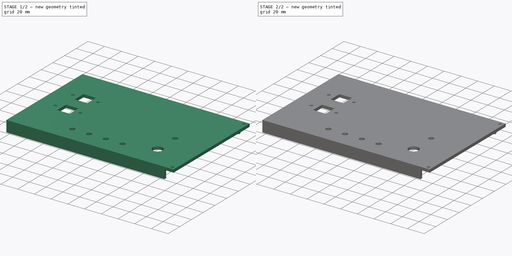
[diagram: build sequence overview — one tinted view per stage of 2, left to right]
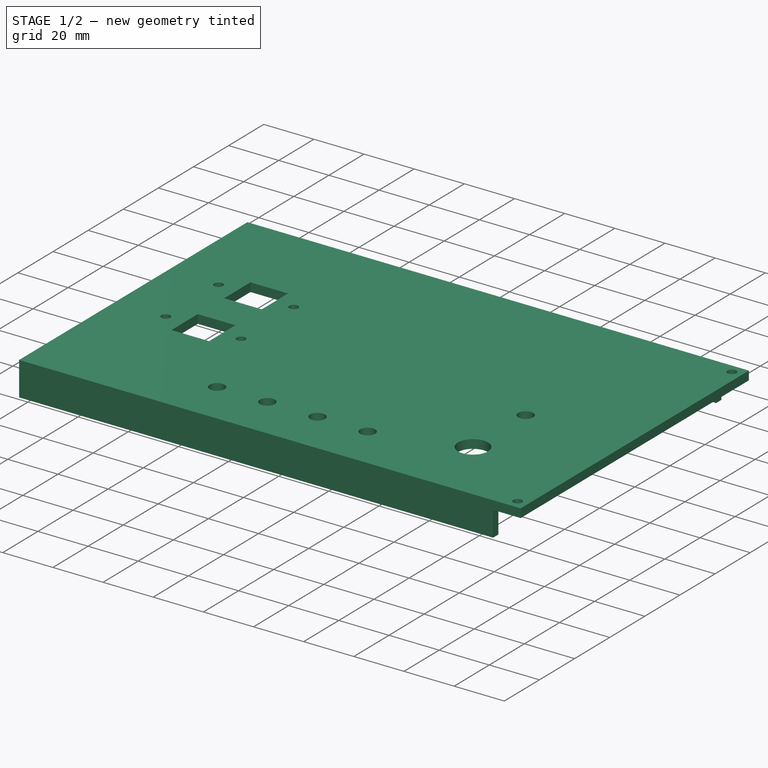
[diagram: stage 1 of 2 — iso view after this stage's code; geometry added in this stage tinted green]
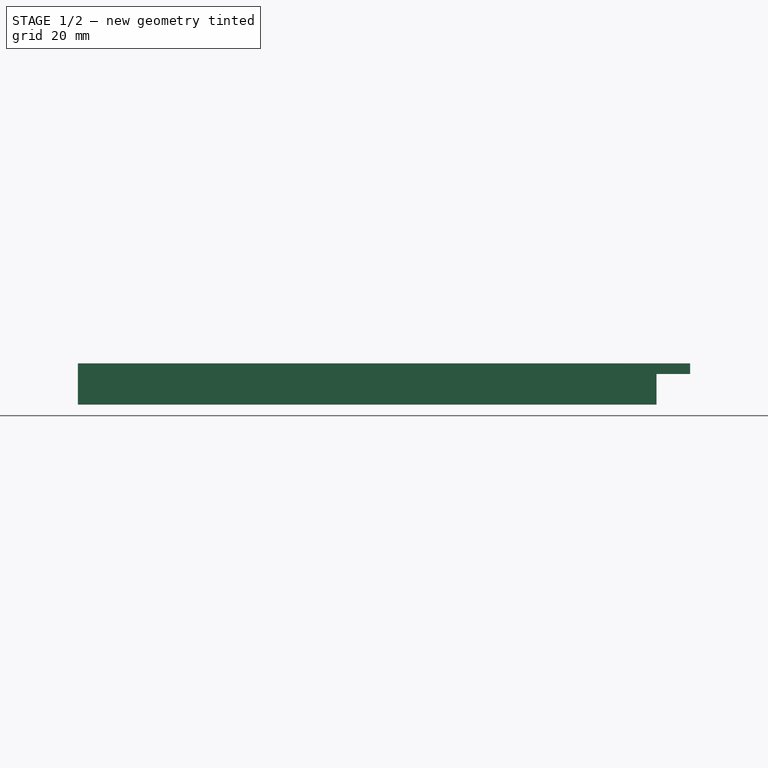
[diagram: stage 1 of 2 — front view after this stage's code; geometry added in this stage tinted green]
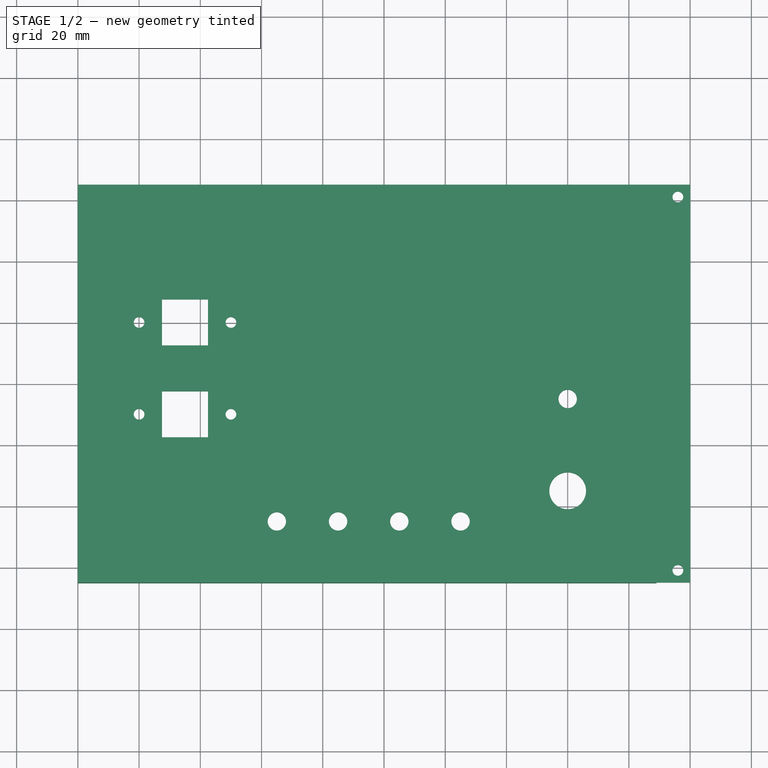
[diagram: stage 1 of 2 — top view after this stage's code; geometry added in this stage tinted green]
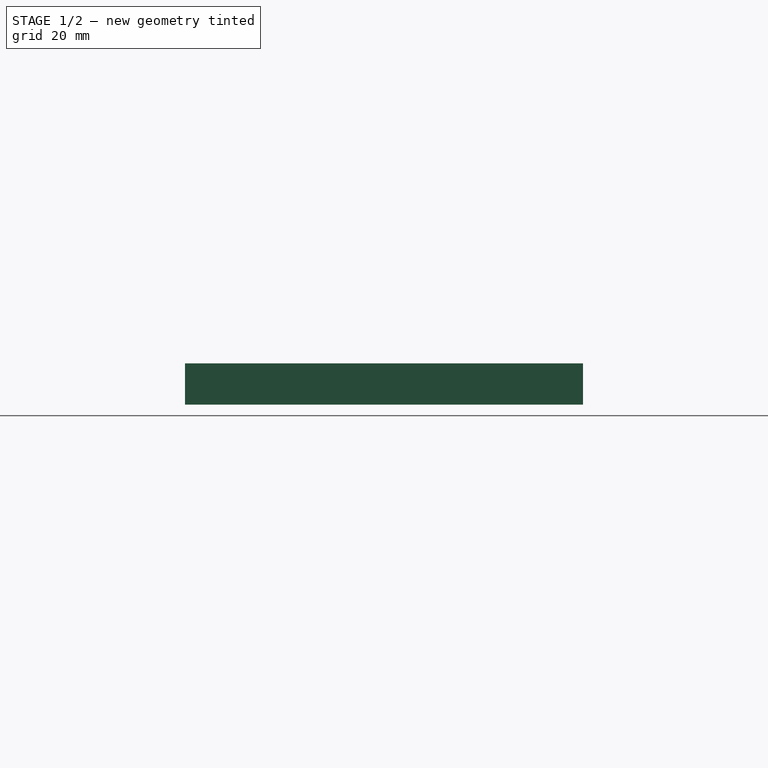
[diagram: stage 1 of 2 — right view after this stage's code; geometry added in this stage tinted green]
FCSTD DOCUMENT  (FreeCAD 0.19R24267 +99 (Git))
Label: T41 7in bACK left panel V007
License: All rights reserved
LicenseURL: http://en.wikipedia.org/wiki/All_rights_reserved
objects: Sketcher::SketchObject×4, PartDesign::Pad×2, PartDesign::Pocket×2, PartDesign::Body×1
note: 13 computed .brp shape members not serialized (recipe doc carries the construction recipe); baked Part::Feature solids carry a one-line shape summary decoded from their .brp

FEATURE [Sketcher::SketchObject] CopySketch010
  FullyConstrained = true
  MapMode = 5
  Placement = pos=(0,0,0) rot=(0,1,0;3.14159rad)
  Support = -> [XY_Plane]
  sketch-geometry (24):
    g0: LineSegment StartX=-200 StartY=65 StartZ=0 EndX=0 EndY=65 EndZ=0
    g1: LineSegment StartX=0 StartY=65 StartZ=0 EndX=0 EndY=-65 EndZ=0
    g2: LineSegment StartX=0 StartY=-65 StartZ=0 EndX=-200 EndY=-65 EndZ=0
    g3: LineSegment StartX=-200 StartY=-65 StartZ=0 EndX=-200 EndY=65 EndZ=0
    g4: Circle CenterX=-196 CenterY=61 CenterZ=0 NormalX=0 NormalY=0 NormalZ=1 AngleXU=0 Radius=1.75
    g5: Circle CenterX=-196 CenterY=-61 CenterZ=0 NormalX=0 NormalY=0 NormalZ=1 AngleXU=0 Radius=1.75
    g6: Circle CenterX=-125 CenterY=-45 CenterZ=0 NormalX=0 NormalY=0 NormalZ=1 AngleXU=0 Radius=3
    g7: Circle CenterX=-105 CenterY=-45 CenterZ=0 NormalX=0 NormalY=0 NormalZ=1 AngleXU=0 Radius=3
    g8: Circle CenterX=-85 CenterY=-45 CenterZ=0 NormalX=0 NormalY=0 NormalZ=1 AngleXU=0 Radius=3
    g9: Circle CenterX=-65 CenterY=-45 CenterZ=0 NormalX=0 NormalY=0 NormalZ=1 AngleXU=0 Radius=3
    g10: Circle CenterX=-50 CenterY=-10 CenterZ=0 NormalX=0 NormalY=0 NormalZ=1 AngleXU=0 Radius=1.75
    g11: Circle CenterX=-20 CenterY=-10 CenterZ=0 NormalX=0 NormalY=0 NormalZ=1 AngleXU=0 Radius=1.75
    g12: LineSegment StartX=-42.5 StartY=-2.5 StartZ=0 EndX=-27.5 EndY=-2.5 EndZ=0
    g13: LineSegment StartX=-27.5 StartY=-2.5 StartZ=0 EndX=-27.5 EndY=-17.5 EndZ=0
    g14: LineSegment StartX=-27.5 StartY=-17.5 StartZ=0 EndX=-42.5 EndY=-17.5 EndZ=0
    g15: LineSegment StartX=-42.5 StartY=-17.5 StartZ=0 EndX=-42.5 EndY=-2.5 EndZ=0
    g16: Circle CenterX=-50 CenterY=20 CenterZ=0 NormalX=0 NormalY=0 NormalZ=1 AngleXU=0 Radius=1.75
    g17: Circle CenterX=-20 CenterY=20 CenterZ=0 NormalX=0 NormalY=0 NormalZ=1 AngleXU=0 Radius=1.75
    g18: LineSegment StartX=-42.5 StartY=27.5 StartZ=0 EndX=-27.5 EndY=27.5 EndZ=0
    g19: LineSegment StartX=-27.5 StartY=27.5 StartZ=0 EndX=-27.5 EndY=12.5 EndZ=0
    g20: LineSegment StartX=-27.5 StartY=12.5 StartZ=0 EndX=-42.5 EndY=12.5 EndZ=0
    g21: LineSegment StartX=-42.5 StartY=12.5 StartZ=0 EndX=-42.5 EndY=27.5 EndZ=0
    g22: Circle CenterX=-160 CenterY=-35 CenterZ=0 NormalX=0 NormalY=0 NormalZ=1 AngleXU=0 Radius=6
    g23: Circle CenterX=-160 CenterY=-5 CenterZ=0 NormalX=0 NormalY=0 NormalZ=1 AngleXU=0 Radius=3
  constraints (72):
    c: Coincident(g0,g1)
    c: Coincident(g1,g2)
    c: Coincident(g2,g3)
    c: Coincident(g3,g0)
    c: Horizontal(g0)
    c: Horizontal(g2)
    c: Vertical(g1)
    c: Vertical(g3)
    c: PointOnObject(g1,g-2)
    c: DistanceY(g1,g1) = 130
    c: DistanceX(g2,g2) = 200
    c: Equal(g4,g5)
    c: Diameter(g4) = 3.5
    c: DistanceY(g5,g-1) = 61
    c: DistanceX(g5,g-1) = 196
    c: DistanceX(g4,g-1) = 196
    c: DistanceY(g-1,g4) = 61
    c: DistanceY(g-1,g0) = 65
    c: Equal(g6,g7)
    c: Equal(g6,g8)
    c: Equal(g6,g9)
    c: Diameter(g6) = 6
    c: Horizontal(g6,g7)
    c: Horizontal(g7,g8)
    c: Horizontal(g8,g9)
    c: DistanceX(g6,g7) = 20
    c: DistanceX(g7,g8) = 20
    c: DistanceX(g8,g9) = 20
    c: Equal(g10,g11)
    c: Diameter(g10) = 3.5
    c: DistanceX(g10,g11) = 30
    c: Horizontal(g10,g11)
    c: Coincident(g12,g13)
    c: Coincident(g13,g14)
    c: Coincident(g14,g15)
    c: Coincident(g15,g12)
    c: Horizontal(g12)
    c: Horizontal(g14)
    c: Vertical(g13)
    c: Vertical(g15)
    c: DistanceX(g12,g12) = 15
    c: DistanceY(g13,g13) = 15
    c: DistanceX(g12,g11) = 7.5
    c: Equal(g16,g17)
    c: Diameter(g16) = 3.5
    c: DistanceX(g16,g17) = 30
    c: Horizontal(g16,g17)
    c: Coincident(g18,g19)
    c: Coincident(g19,g20)
    c: Coincident(g20,g21)
    c: Coincident(g21,g18)
    c: Horizontal(g18)
    c: Horizontal(g20)
    c: Vertical(g19)
    c: Vertical(g21)
    c: DistanceX(g18,g18) = 15
    c: DistanceY(g19,g19) = 15
    c: DistanceX(g18,g17) = 7.5
    c: DistanceY(g11,g12) = 7.5
    c: DistanceY(g17,g18) = 7.5
    c: DistanceY(g11,g-1) = 10
    c: DistanceY(g-1,g17) = 20
    c: Diameter(g22) = 12
    c: DistanceX(g22,g-1) = 160
    c: DistanceY(g22,g-1) = 35
    c: DistanceY(g6,g-1) = 45
    c: DistanceX(g22,g6) = 35
    c: DistanceX(g17,g-1) = 20
    c: Vertical(g17,g11)
    c: Diameter(g23) = 6
    c: DistanceY(g22,g23) = 30
    c: Vertical(g23,g22)
FEATURE [PartDesign::Pad] Pad
  Direction = (1,1,1)
  Length = 3.5
  Length2 = 100
  Profile = -> CopySketch010
  Type = 0
FEATURE [Sketcher::SketchObject] Sketch
  FullyConstrained = true
  MapMode = 5
  Support = -> [XY_Plane]
  sketch-geometry (8):
    g0: LineSegment StartX=0 StartY=65 StartZ=0 EndX=189 EndY=65 EndZ=0
    g1: LineSegment StartX=189 StartY=65 StartZ=0 EndX=189 EndY=62 EndZ=0
    g2: LineSegment StartX=3 StartY=62 StartZ=0 EndX=3 EndY=-62 EndZ=0
    g3: LineSegment StartX=0 StartY=-65 StartZ=0 EndX=0 EndY=65 EndZ=0
    g4: LineSegment StartX=3 StartY=62 StartZ=0 EndX=189 EndY=62 EndZ=0
    g5: LineSegment StartX=3 StartY=-62 StartZ=0 EndX=189 EndY=-62 EndZ=0
    g6: LineSegment StartX=0 StartY=-65 StartZ=0 EndX=189 EndY=-65 EndZ=0
    g7: LineSegment StartX=189 StartY=-62 StartZ=0 EndX=189 EndY=-65 EndZ=0
  constraints (24):
    c: Coincident(g0,g1)
    c: Horizontal(g0)
    c: Vertical(g1)
    c: PointOnObject(g0,g-2)
    c: Vertical(g2)
    c: Vertical(g3)
    c: DistanceY(g-1,g0) = 65
    c: DistanceX(g0,g0) = 189
    c: DistanceY(g3,g-1) = 65
    c: DistanceY(g2,g-1) = 62
    c: DistanceY(g2,g2) = 124
    c: Coincident(g4,g1)
    c: Horizontal(g4)
    c: Coincident(g5,g2)
    c: Horizontal(g5)
    c: Coincident(g6,g3)
    c: Horizontal(g6)
    c: Coincident(g7,g5)
    c: Coincident(g7,g6)
    c: DistanceX(g6,g6) = 189
    c: DistanceX(g5,g5) = 186
    c: DistanceX(g-1,g2) = 3
    c: Coincident(g0,g3)
    c: Coincident(g4,g2)
FEATURE [PartDesign::Pad] Pad001  label="Flange"
  BaseFeature = -> Pad
  Direction = (1,1,1)
  Length = 13.5
  Length2 = 100
  Profile = -> Sketch
  Reversed = true
  Type = 0
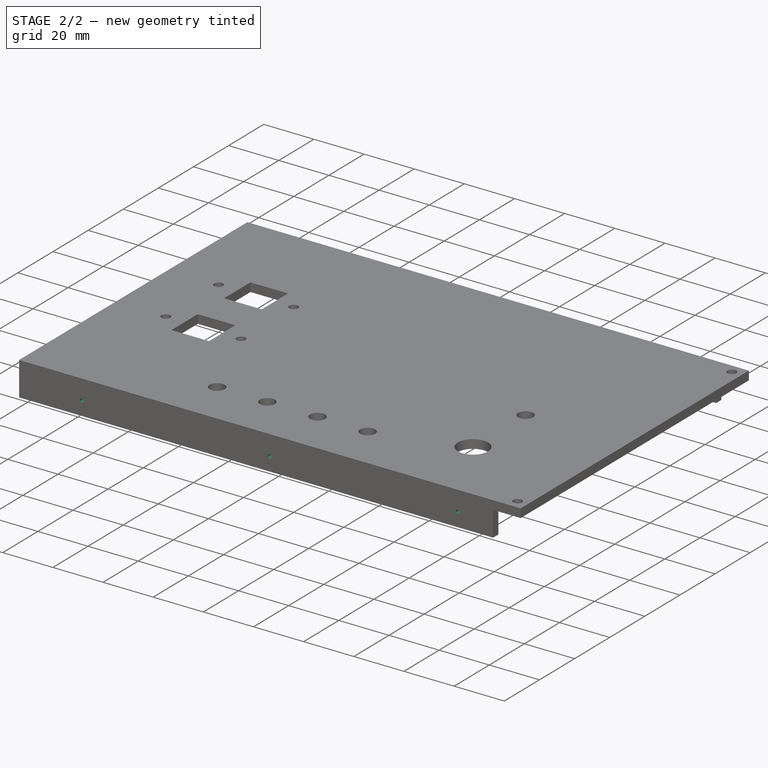
[diagram: stage 2 of 2 — iso view after this stage's code; geometry added in this stage tinted green]
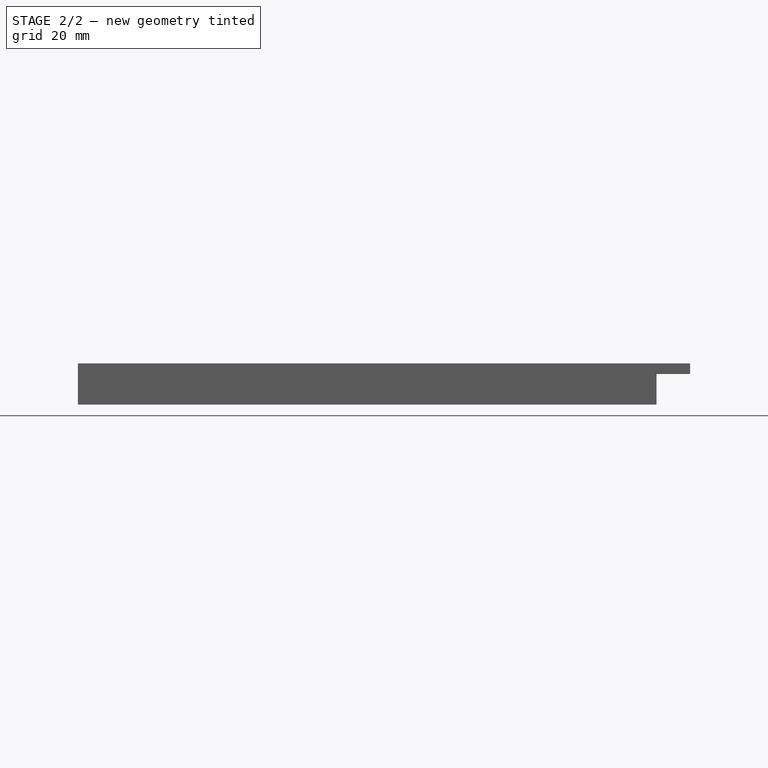
[diagram: stage 2 of 2 — front view after this stage's code; geometry added in this stage tinted green]
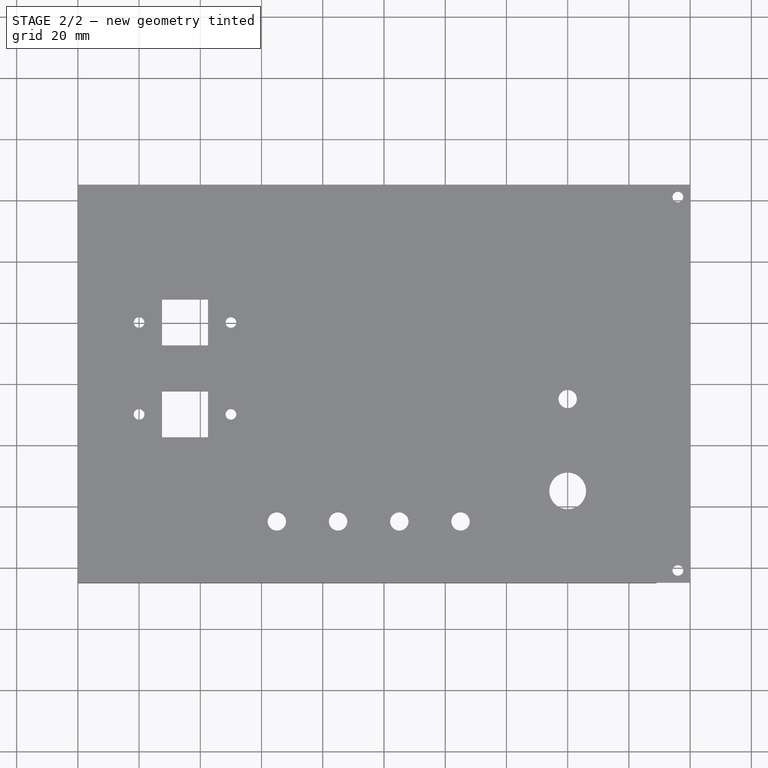
[diagram: stage 2 of 2 — top view after this stage's code; geometry added in this stage tinted green]
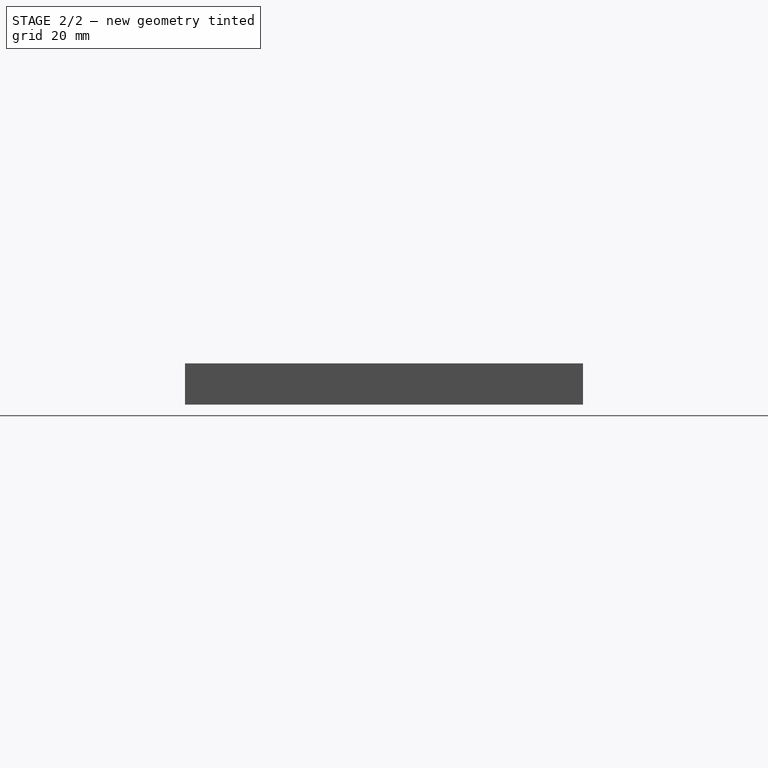
[diagram: stage 2 of 2 — right view after this stage's code; geometry added in this stage tinted green]
FEATURE [Sketcher::SketchObject] Sketch001
  AttachmentOffset = pos=(0,0,65) rot=(0,0,1;0rad)
  FullyConstrained = true
  MapMode = 5
  Placement = pos=(0,-65,-1.44e-14) rot=(1,0,0;1.5708rad)
  Support = -> [XZ_Plane]
  sketch-geometry (3):
    g0: Circle CenterX=25 CenterY=-8 CenterZ=0 NormalX=0 NormalY=0 NormalZ=1 AngleXU=0 Radius=0.75
    g1: Circle CenterX=100 CenterY=-8 CenterZ=0 NormalX=0 NormalY=0 NormalZ=1 AngleXU=0 Radius=0.75
    g2: Circle CenterX=175 CenterY=-8 CenterZ=0 NormalX=0 NormalY=0 NormalZ=1 AngleXU=0 Radius=0.75
  constraints (9):
    c: DistanceX(g-1,g0) = 25
    c: DistanceX(g-1,g2) = 175
    c: DistanceX(g-1,g1) = 100
    c: Equal(g0,g1)
    c: Equal(g0,g2)
    c: Diameter(g0) = 1.5
    c: DistanceY(g0,g-1) = 8
    c: DistanceY(g1,g-1) = 8
    c: DistanceY(g2,g-1) = 8
FEATURE [PartDesign::Pocket] Pocket  label="Bottom holes"
  BaseFeature = -> Pad001
  Length = 200
  Length2 = 100
  Midplane = true
  Profile = -> Sketch001
  Type = 0
FEATURE [Sketcher::SketchObject] Sketch002
  AttachmentOffset = pos=(0,0,-60) rot=(0,0,1;0rad)
  FullyConstrained = true
  MapMode = 5
  Placement = pos=(0,60,1.33e-14) rot=(1,0,0;1.5708rad)
  Support = -> [XZ_Plane]
  sketch-geometry (1):
    g0: Circle CenterX=52 CenterY=-7 CenterZ=0 NormalX=0 NormalY=0 NormalZ=1 AngleXU=0 Radius=0.75
  constraints (3):
    c: DistanceX(g-1,g0) = 52
    c: DistanceY(g0,g-1) = 7
    c: Diameter(g0) = 1.5
FEATURE [PartDesign::Pocket] Pocket001  label="Top hole"
  BaseFeature = -> Pocket
  Length = 5
  Length2 = 100
  Profile = -> Sketch002
  Type = 0
FEATURE [PartDesign::Body] Body  label="Back Panel  L"
  Group = -> [CopySketch010,Pad,Sketch,Pad001,Sketch001,Pocket,Sketch002,Pocket001]
  Origin = -> Origin
  Tip = -> Pocket001
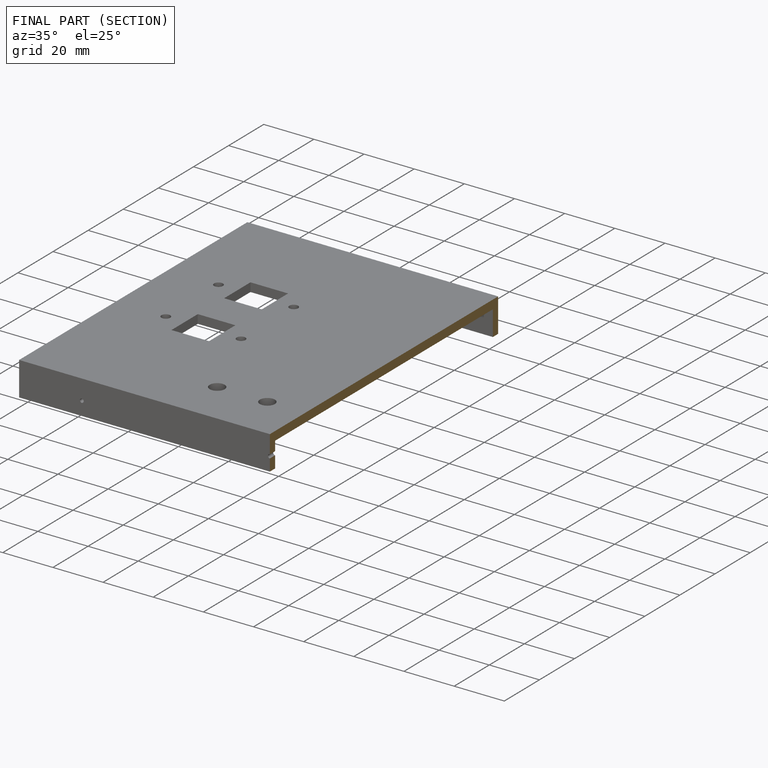
[diagram: finished part — half-section view (interior)]
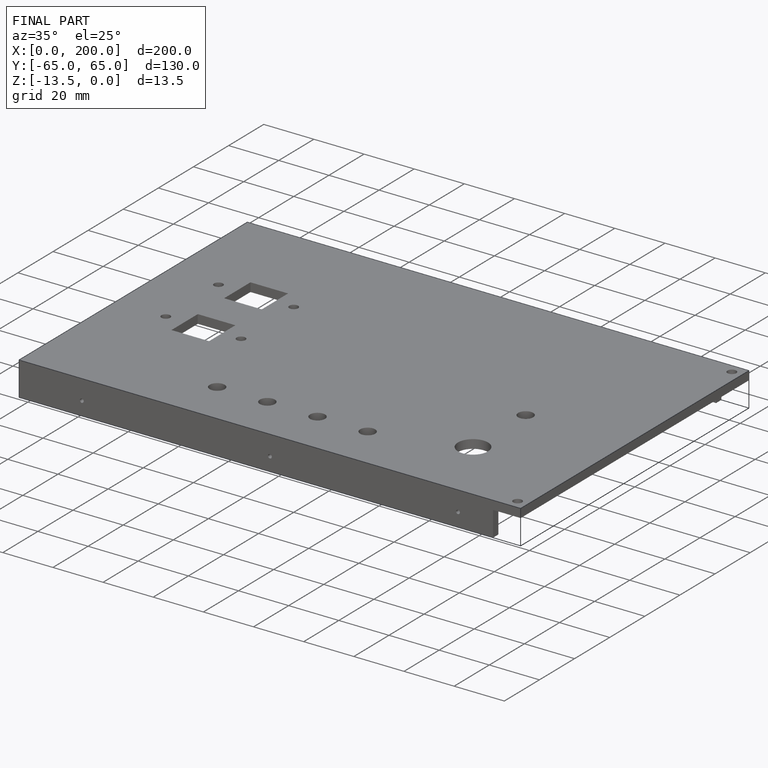
[diagram: finished part — iso view with bounding-box wireframe]
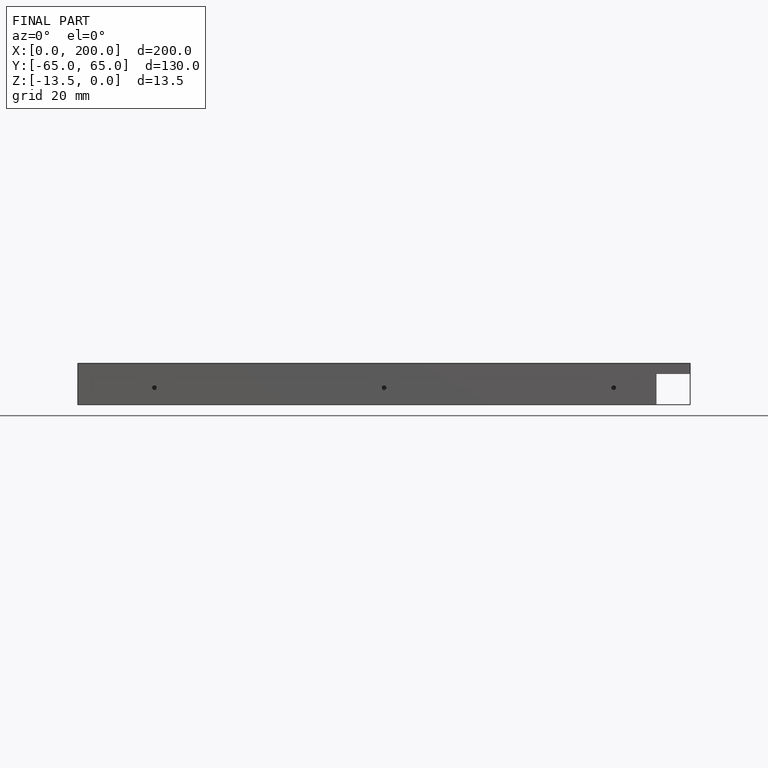
[diagram: finished part — front view with bounding-box wireframe]
